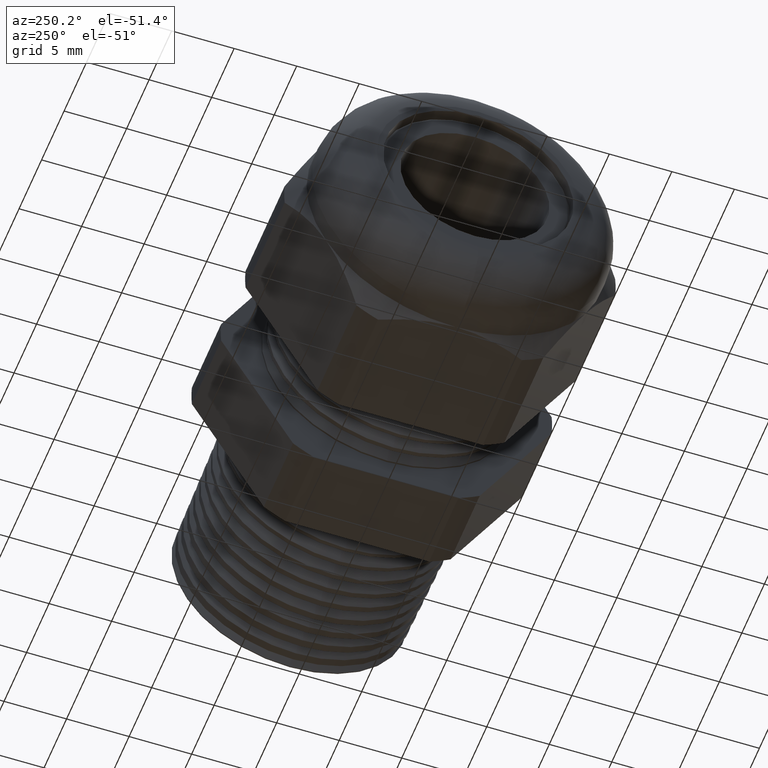
[diagram: clean part render]
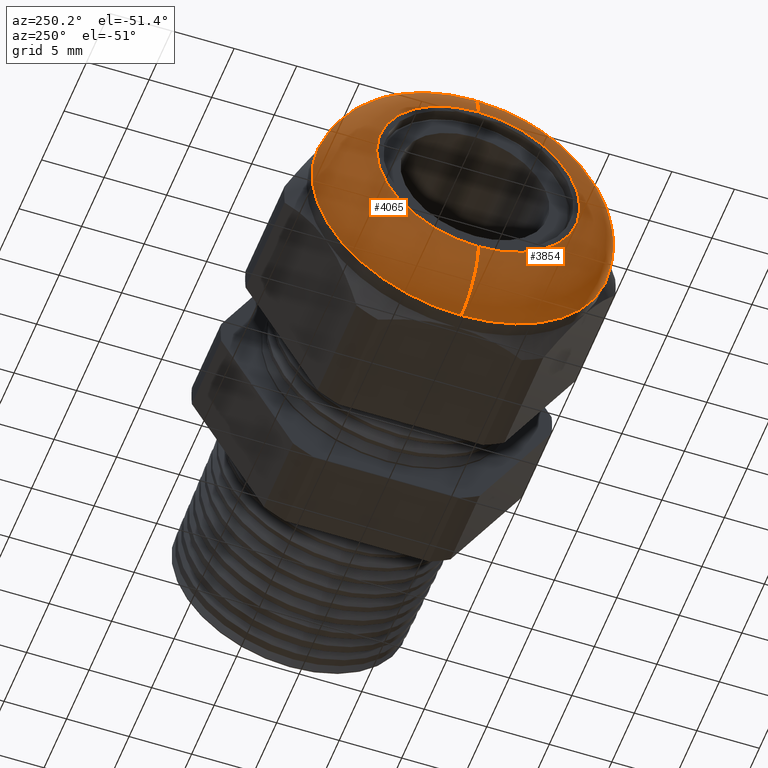
[diagram: same view with one multi-face feature highlighted, each face labeled with its STEP entity id]
A machine part, auxiliary view. The highlighted faces form ONE feature: a constant-radius fillet chain: 2 tangent blend faces with common blend radius 3.81 mm. The faces share edges in the B-rep.
Their STEP definitions:
[1] entity #3854 (Torus):
#819 = EDGE_CURVE ( 'NONE', #3905, #3903, #2587, .T. ) ;
#832 = EDGE_CURVE ( 'NONE', #4067, #4066, #2566, .T. ) ;
#2528 = CARTESIAN_POINT ( 'NONE',  ( -1.369999999999999900, 0.0000000000000000000, 0.0000000000000000000 ) ) ;
#2558 = DIRECTION ( 'NONE',  ( 0.0000000000000000000, 0.0000000000000000000, 1.000000000000000000 ) ) ;
#2559 = DIRECTION ( 'NONE',  ( 1.000000000000000000, 0.0000000000000000000, 0.0000000000000000000 ) ) ;
#2560 = CARTESIAN_POINT ( 'NONE',  ( -1.219999999999999800, 0.0000000000000000000, 0.0000000000000000000 ) ) ;
#2561 = AXIS2_PLACEMENT_3D ( 'NONE', #2560, #2559, #2558 ) ;
#2566 = CIRCLE ( 'NONE', #2561, 0.4699999999999999200 ) ;
#2584 = DIRECTION ( 'NONE',  ( 0.0000000000000000000, 0.0000000000000000000, 1.000000000000000000 ) ) ;
#2585 = DIRECTION ( 'NONE',  ( -1.000000000000000000, 0.0000000000000000000, 0.0000000000000000000 ) ) ;
#2586 = AXIS2_PLACEMENT_3D ( 'NONE', #2528, #2585, #2584 ) ;
#2587 = CIRCLE ( 'NONE', #2586, 0.3199999999999999500 ) ;
#3269 = DIRECTION ( 'NONE',  ( 0.0000000000000000000, 0.0000000000000000000, 1.000000000000000000 ) ) ;
#3270 = DIRECTION ( 'NONE',  ( -1.000000000000000000, 0.0000000000000000000, 0.0000000000000000000 ) ) ;
#3271 = AXIS2_PLACEMENT_3D ( 'NONE', #3279, #3270, #3269 ) ;
#3272 = TOROIDAL_SURFACE ( 'NONE', #3271, 0.3199999999999999500, 0.1499999999999999900 ) ;
#3273 = FACE_OUTER_BOUND ( 'NONE', #3852, .T. ) ;
#3279 = CARTESIAN_POINT ( 'NONE',  ( -1.219999999999999800, 0.0000000000000000000, 0.0000000000000000000 ) ) ;
#3332 = DIRECTION ( 'NONE',  ( 0.0000000000000000000, 0.0000000000000000000, -1.000000000000000000 ) ) ;
#3333 = DIRECTION ( 'NONE',  ( 0.0000000000000000000, -1.000000000000000000, 0.0000000000000000000 ) ) ;
#3334 = CARTESIAN_POINT ( 'NONE',  ( -1.219999999999999800, 0.0000000000000000000, 0.3199999999999999500 ) ) ;
#3335 = AXIS2_PLACEMENT_3D ( 'NONE', #3334, #3333, #3332 ) ;
#3336 = CIRCLE ( 'NONE', #3335, 0.1499999999999999700 ) ;
#3338 = CARTESIAN_POINT ( 'NONE',  ( -1.369999999999999900, 4.837354856632043700E-017, -0.3199999999999999500 ) ) ;
#3339 = CARTESIAN_POINT ( 'NONE',  ( -1.369999999999999900, 0.0000000000000000000, 0.3199999999999999500 ) ) ;
#3628 = DIRECTION ( 'NONE',  ( 0.0000000000000000000, -1.224646799147353200E-016, 1.000000000000000000 ) ) ;
#3629 = DIRECTION ( 'NONE',  ( 0.0000000000000000000, 1.000000000000000000, 1.224646799147353200E-016 ) ) ;
#3630 = CARTESIAN_POINT ( 'NONE',  ( -1.219999999999999800, 3.918869757271529000E-017, -0.3199999999999999500 ) ) ;
#3631 = AXIS2_PLACEMENT_3D ( 'NONE', #3630, #3629, #3628 ) ;
#3632 = CIRCLE ( 'NONE', #3631, 0.1499999999999999700 ) ;
#3634 = CARTESIAN_POINT ( 'NONE',  ( -1.219999999999999800, 5.755839955992558400E-017, 0.4699999999999999200 ) ) ;
#3635 = CARTESIAN_POINT ( 'NONE',  ( -1.219999999999999800, 0.0000000000000000000, -0.4699999999999999200 ) ) ;
#3848 = ORIENTED_EDGE ( 'NONE', *, *, #832, .F. ) ;
#3849 = ORIENTED_EDGE ( 'NONE', *, *, #819, .F. ) ;
#3850 = ORIENTED_EDGE ( 'NONE', *, *, #4068, .F. ) ;
#3851 = ORIENTED_EDGE ( 'NONE', *, *, #3906, .T. ) ;
#3852 = EDGE_LOOP ( 'NONE', ( #3850, #3848, #3851, #3849 ) ) ;
#3854 = ADVANCED_FACE ( 'NONE', ( #3273 ), #3272, .T. ) ;
#3903 = VERTEX_POINT ( 'NONE', #3339 ) ;
#3905 = VERTEX_POINT ( 'NONE', #3338 ) ;
#3906 = EDGE_CURVE ( 'NONE', #4067, #3903, #3336, .T. ) ;
#4066 = VERTEX_POINT ( 'NONE', #3635 ) ;
#4067 = VERTEX_POINT ( 'NONE', #3634 ) ;
#4068 = EDGE_CURVE ( 'NONE', #4066, #3905, #3632, .T. ) ;
[2] entity #4065 (Torus):
#3332 = DIRECTION ( 'NONE',  ( 0.0000000000000000000, 0.0000000000000000000, -1.000000000000000000 ) ) ;
#3333 = DIRECTION ( 'NONE',  ( 0.0000000000000000000, -1.000000000000000000, 0.0000000000000000000 ) ) ;
#3334 = CARTESIAN_POINT ( 'NONE',  ( -1.219999999999999800, 0.0000000000000000000, 0.3199999999999999500 ) ) ;
#3335 = AXIS2_PLACEMENT_3D ( 'NONE', #3334, #3333, #3332 ) ;
#3336 = CIRCLE ( 'NONE', #3335, 0.1499999999999999700 ) ;
#3337 = CARTESIAN_POINT ( 'NONE',  ( -1.369999999999999900, 0.0000000000000000000, 0.0000000000000000000 ) ) ;
#3338 = CARTESIAN_POINT ( 'NONE',  ( -1.369999999999999900, 4.837354856632043700E-017, -0.3199999999999999500 ) ) ;
#3339 = CARTESIAN_POINT ( 'NONE',  ( -1.369999999999999900, 0.0000000000000000000, 0.3199999999999999500 ) ) ;
#3391 = DIRECTION ( 'NONE',  ( 0.0000000000000000000, 0.0000000000000000000, 1.000000000000000000 ) ) ;
#3392 = DIRECTION ( 'NONE',  ( -1.000000000000000000, 0.0000000000000000000, 0.0000000000000000000 ) ) ;
#3393 = AXIS2_PLACEMENT_3D ( 'NONE', #3337, #3392, #3391 ) ;
#3394 = CIRCLE ( 'NONE', #3393, 0.3199999999999999500 ) ;
#3585 = DIRECTION ( 'NONE',  ( 1.000000000000000000, 0.0000000000000000000, 0.0000000000000000000 ) ) ;
#3586 = CARTESIAN_POINT ( 'NONE',  ( -1.219999999999999800, 0.0000000000000000000, 0.0000000000000000000 ) ) ;
#3587 = AXIS2_PLACEMENT_3D ( 'NONE', #3586, #3585, #3647 ) ;
#3588 = CIRCLE ( 'NONE', #3587, 0.4699999999999999200 ) ;
#3628 = DIRECTION ( 'NONE',  ( 0.0000000000000000000, -1.224646799147353200E-016, 1.000000000000000000 ) ) ;
#3629 = DIRECTION ( 'NONE',  ( 0.0000000000000000000, 1.000000000000000000, 1.224646799147353200E-016 ) ) ;
#3630 = CARTESIAN_POINT ( 'NONE',  ( -1.219999999999999800, 3.918869757271529000E-017, -0.3199999999999999500 ) ) ;
#3631 = AXIS2_PLACEMENT_3D ( 'NONE', #3630, #3629, #3628 ) ;
#3632 = CIRCLE ( 'NONE', #3631, 0.1499999999999999700 ) ;
#3634 = CARTESIAN_POINT ( 'NONE',  ( -1.219999999999999800, 5.755839955992558400E-017, 0.4699999999999999200 ) ) ;
#3635 = CARTESIAN_POINT ( 'NONE',  ( -1.219999999999999800, 0.0000000000000000000, -0.4699999999999999200 ) ) ;
#3636 = DIRECTION ( 'NONE',  ( 0.0000000000000000000, 0.0000000000000000000, 1.000000000000000000 ) ) ;
#3637 = DIRECTION ( 'NONE',  ( -1.000000000000000000, 0.0000000000000000000, 0.0000000000000000000 ) ) ;
#3638 = CARTESIAN_POINT ( 'NONE',  ( -1.219999999999999800, 0.0000000000000000000, 0.0000000000000000000 ) ) ;
#3639 = AXIS2_PLACEMENT_3D ( 'NONE', #3638, #3637, #3636 ) ;
#3640 = TOROIDAL_SURFACE ( 'NONE', #3639, 0.3199999999999999500, 0.1499999999999999900 ) ;
#3641 = FACE_OUTER_BOUND ( 'NONE', #4063, .T. ) ;
#3647 = DIRECTION ( 'NONE',  ( 0.0000000000000000000, 0.0000000000000000000, 1.000000000000000000 ) ) ;
#3903 = VERTEX_POINT ( 'NONE', #3339 ) ;
#3904 = ORIENTED_EDGE ( 'NONE', *, *, #3908, .F. ) ;
#3905 = VERTEX_POINT ( 'NONE', #3338 ) ;
#3906 = EDGE_CURVE ( 'NONE', #4067, #3903, #3336, .T. ) ;
#3908 = EDGE_CURVE ( 'NONE', #3903, #3905, #3394, .T. ) ;
#3910 = ORIENTED_EDGE ( 'NONE', *, *, #3906, .F. ) ;
#4061 = EDGE_CURVE ( 'NONE', #4066, #4067, #3588, .T. ) ;
#4063 = EDGE_LOOP ( 'NONE', ( #4064, #4070, #3904, #3910 ) ) ;
#4064 = ORIENTED_EDGE ( 'NONE', *, *, #4061, .F. ) ;
#4065 = ADVANCED_FACE ( 'NONE', ( #3641 ), #3640, .T. ) ;
#4066 = VERTEX_POINT ( 'NONE', #3635 ) ;
#4067 = VERTEX_POINT ( 'NONE', #3634 ) ;
#4068 = EDGE_CURVE ( 'NONE', #4066, #3905, #3632, .T. ) ;
#4070 = ORIENTED_EDGE ( 'NONE', *, *, #4068, .T. ) ;